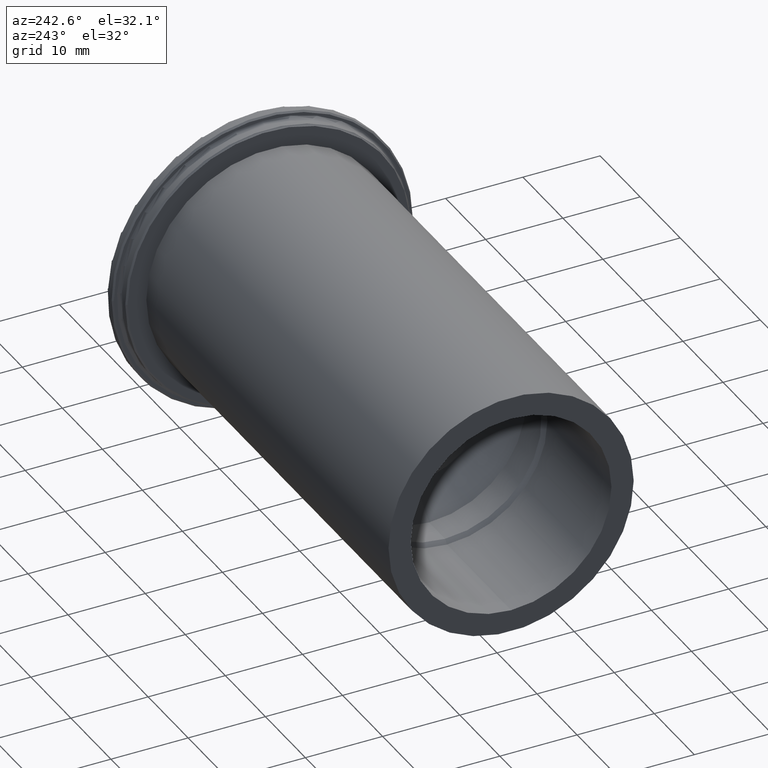
[diagram: clean part render]
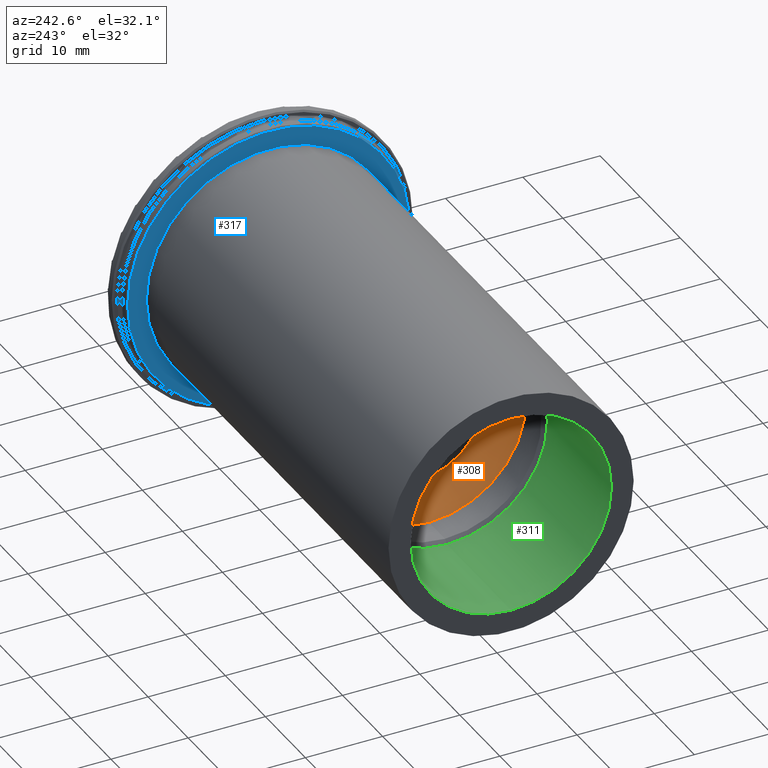
[diagram: same view with three faces highlighted in distinct colors, each labeled with its STEP entity id]
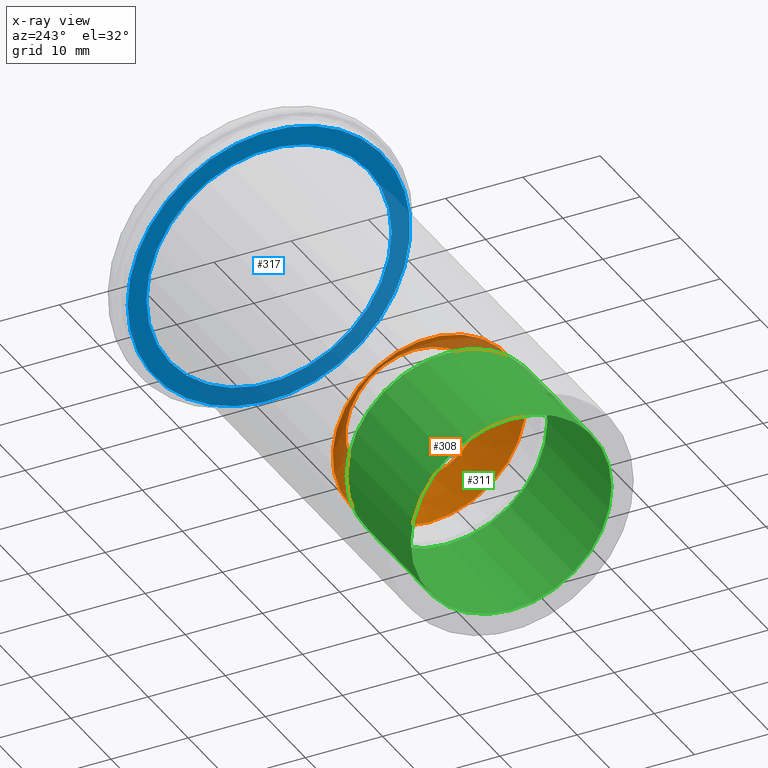
[diagram: x-ray of the same camera — body ghosted, the three highlighted faces saturated]
A machine part, auxiliary view with three faces highlighted in distinct colors.
The next image is the same camera in x-ray (body ghosted, the three faces saturated) — at least one of them is partly hidden behind the body in this view.
Their STEP definitions:

[orange] entity #308 — the highlighted conical surface has half-angle 45 deg.
#95=CONICAL_SURFACE('',#350,6.25,0.785398163397448);
#100=FACE_OUTER_BOUND('',#116,.T.);
#116=EDGE_LOOP('',(#240,#241,#242,#243,#244));
#136=LINE('',#535,#146);
#146=VECTOR('',#416,6.25);
#156=CIRCLE('',#348,9.);
#157=CIRCLE('',#349,9.);
#158=CIRCLE('',#351,12.5);
#182=VERTEX_POINT('',#527);
#183=VERTEX_POINT('',#529);
#184=VERTEX_POINT('',#533);
#204=EDGE_CURVE('',#183,#182,#156,.T.);
#205=EDGE_CURVE('',#182,#183,#157,.T.);
#206=EDGE_CURVE('',#184,#184,#158,.T.);
#207=EDGE_CURVE('',#184,#183,#136,.T.);
#240=ORIENTED_EDGE('',*,*,#206,.T.);
#241=ORIENTED_EDGE('',*,*,#207,.T.);
#242=ORIENTED_EDGE('',*,*,#204,.T.);
#243=ORIENTED_EDGE('',*,*,#205,.T.);
#244=ORIENTED_EDGE('',*,*,#207,.F.);
#308=ADVANCED_FACE('',(#100),#95,.F.);
#348=AXIS2_PLACEMENT_3D('',#530,#408,#409);
#349=AXIS2_PLACEMENT_3D('',#531,#410,#411);
#350=AXIS2_PLACEMENT_3D('',#532,#412,#413);
#351=AXIS2_PLACEMENT_3D('',#534,#414,#415);
#408=DIRECTION('center_axis',(1.,0.,0.));
#409=DIRECTION('ref_axis',(0.,0.,-1.));
#410=DIRECTION('center_axis',(1.,0.,0.));
#411=DIRECTION('ref_axis',(0.,0.,-1.));
#412=DIRECTION('center_axis',(-1.,0.,0.));
#413=DIRECTION('ref_axis',(0.,0.,1.));
#414=DIRECTION('center_axis',(-1.,0.,0.));
#415=DIRECTION('ref_axis',(0.,0.,1.));
#416=DIRECTION('',(0.707106781186548,8.65956056235494E-17,0.707106781186547));
#527=CARTESIAN_POINT('',(-39.5,-1.10218211923262E-15,9.));
#529=CARTESIAN_POINT('',(-39.5,-1.10218211923262E-15,-9.));
#530=CARTESIAN_POINT('Origin',(-39.5,0.,0.));
#531=CARTESIAN_POINT('Origin',(-39.5,0.,0.));
#532=CARTESIAN_POINT('Origin',(-36.75,0.,0.));
#533=CARTESIAN_POINT('',(-43.,-1.53080849893419E-15,-12.5));
#534=CARTESIAN_POINT('Origin',(-43.,0.,0.));
#535=CARTESIAN_POINT('',(-36.75,-7.65404249467096E-16,-6.25));

[blue] entity #317 — the highlighted planar face has unit normal (-1, 0, 0).
#88=FACE_BOUND('',#127,.T.);
#92=PLANE('',#374);
#109=FACE_OUTER_BOUND('',#126,.T.);
#126=EDGE_LOOP('',(#281));
#127=EDGE_LOOP('',(#282));
#170=CIRCLE('',#370,18.3);
#173=CIRCLE('',#375,15.875);
#196=VERTEX_POINT('',#570);
#199=VERTEX_POINT('',#580);
#225=EDGE_CURVE('',#196,#196,#170,.T.);
#229=EDGE_CURVE('',#199,#199,#173,.T.);
#281=ORIENTED_EDGE('',*,*,#225,.F.);
#282=ORIENTED_EDGE('',*,*,#229,.T.);
#317=ADVANCED_FACE('',(#109,#88),#92,.T.);
#370=AXIS2_PLACEMENT_3D('',#572,#459,#460);
#374=AXIS2_PLACEMENT_3D('',#579,#468,#469);
#375=AXIS2_PLACEMENT_3D('',#581,#470,#471);
#459=DIRECTION('center_axis',(1.,0.,0.));
#460=DIRECTION('ref_axis',(0.,-1.,0.));
#468=DIRECTION('center_axis',(-1.,0.,0.));
#469=DIRECTION('ref_axis',(0.,0.,1.));
#470=DIRECTION('center_axis',(1.,0.,0.));
#471=DIRECTION('ref_axis',(0.,0.,-1.));
#570=CARTESIAN_POINT('',(-3.,18.3,2.24110364243966E-15));
#572=CARTESIAN_POINT('Origin',(-3.,0.,0.));
#579=CARTESIAN_POINT('Origin',(-3.,18.5,0.));
#580=CARTESIAN_POINT('',(-2.99999999999997,-15.875,-1.94412679364642E-15));
#581=CARTESIAN_POINT('Origin',(-2.99999999999997,0.,0.));

[green] entity #311 — the highlighted cylindrical surface (bore or boss wall) has radius 13 mm, axis along (-1, 0, 0).
#103=FACE_OUTER_BOUND('',#119,.T.);
#119=EDGE_LOOP('',(#253,#254,#255,#256));
#139=LINE('',#547,#149);
#149=VECTOR('',#431,13.);
#160=CIRCLE('',#355,13.);
#161=CIRCLE('',#357,13.);
#186=VERTEX_POINT('',#541);
#187=VERTEX_POINT('',#545);
#210=EDGE_CURVE('',#186,#186,#160,.T.);
#212=EDGE_CURVE('',#187,#187,#161,.T.);
#213=EDGE_CURVE('',#187,#186,#139,.T.);
#253=ORIENTED_EDGE('',*,*,#212,.F.);
#254=ORIENTED_EDGE('',*,*,#213,.T.);
#255=ORIENTED_EDGE('',*,*,#210,.F.);
#256=ORIENTED_EDGE('',*,*,#213,.F.);
#303=CYLINDRICAL_SURFACE('',#356,13.);
#311=ADVANCED_FACE('',(#103),#303,.F.);
#355=AXIS2_PLACEMENT_3D('',#542,#424,#425);
#356=AXIS2_PLACEMENT_3D('',#544,#427,#428);
#357=AXIS2_PLACEMENT_3D('',#546,#429,#430);
#424=DIRECTION('center_axis',(-1.,0.,0.));
#425=DIRECTION('ref_axis',(0.,0.,1.));
#427=DIRECTION('center_axis',(-1.,0.,0.));
#428=DIRECTION('ref_axis',(0.,0.,1.));
#429=DIRECTION('center_axis',(1.,0.,0.));
#430=DIRECTION('ref_axis',(0.,0.,1.));
#431=DIRECTION('',(1.,0.,0.));
#541=CARTESIAN_POINT('',(-47.5,-1.59204083889156E-15,-13.));
#542=CARTESIAN_POINT('Origin',(-47.5,0.,0.));
#544=CARTESIAN_POINT('Origin',(-55.5,0.,0.));
#545=CARTESIAN_POINT('',(-63.5,-1.59204083889156E-15,-13.));
#546=CARTESIAN_POINT('Origin',(-63.5,0.,0.));
#547=CARTESIAN_POINT('',(-55.5,-1.59204083889156E-15,-13.));